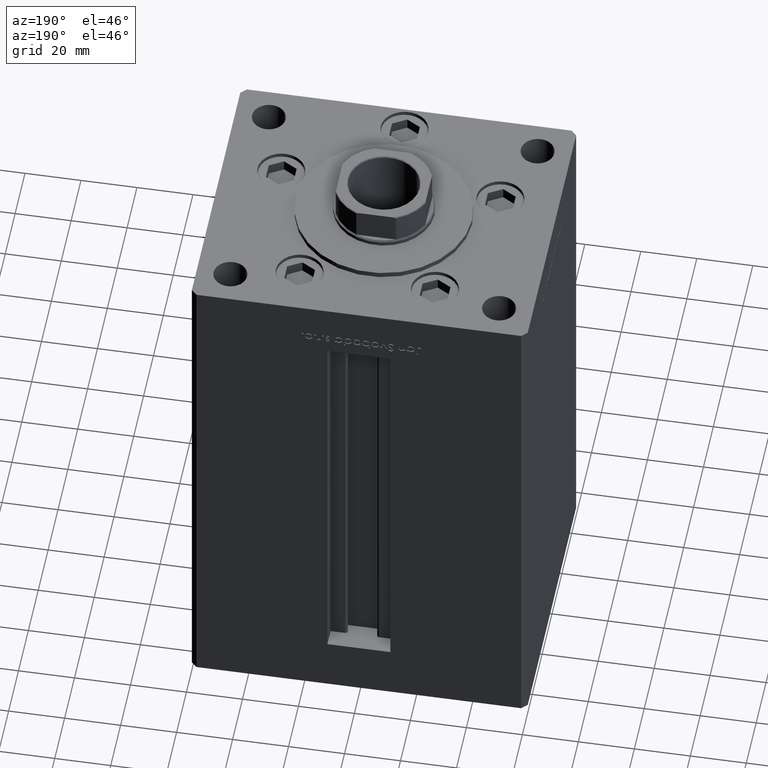
[diagram: clean part render]
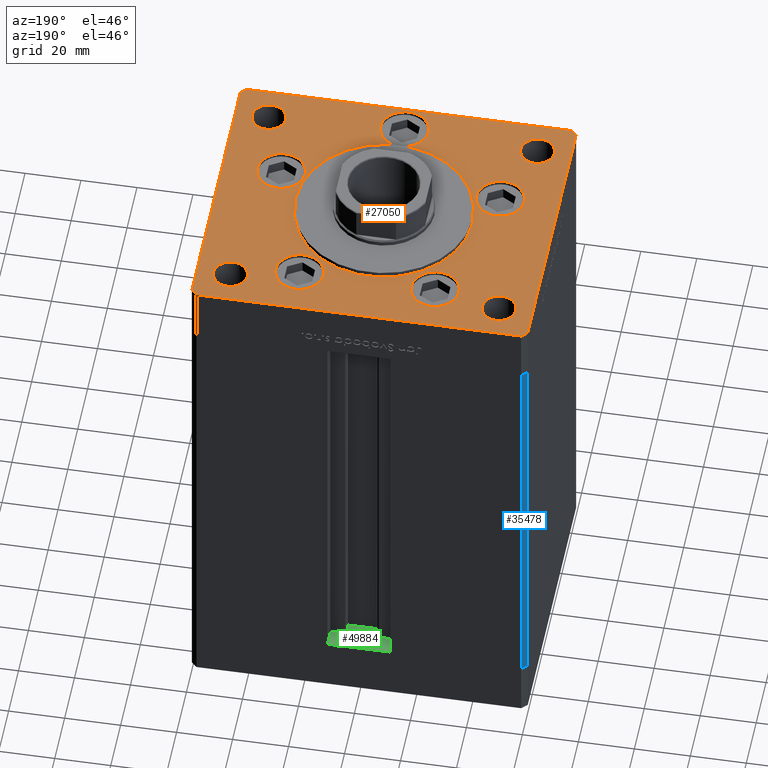
[diagram: same view with three faces highlighted in distinct colors, each labeled with its STEP entity id]
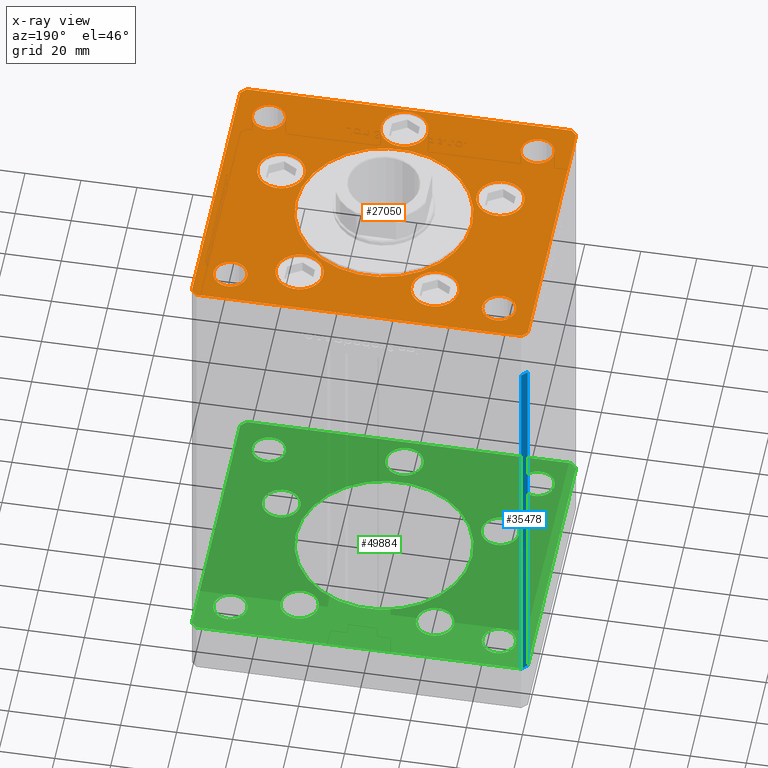
[diagram: x-ray of the same camera — body ghosted, the three highlighted faces saturated]
A machine part, auxiliary view with three faces highlighted in distinct colors.
The next image is the same camera in x-ray (body ghosted, the three faces saturated) — at least one of them is partly hidden behind the body in this view.
Their STEP definitions:

[orange] entity #27050 — the highlighted planar face has unit normal (0, 0, 1).
#274 = ORIENTED_EDGE ( 'NONE', *, *, #41556, .F. ) ;
#489 = EDGE_CURVE ( 'NONE', #48391, #15076, #52145, .T. ) ;
#869 = AXIS2_PLACEMENT_3D ( 'NONE', #36568, #8882, #33129 ) ;
#1043 = ORIENTED_EDGE ( 'NONE', *, *, #39900, .F. ) ;
#1106 = VERTEX_POINT ( 'NONE', #44531 ) ;
#1273 = CIRCLE ( 'NONE', #19786, 6.000000000000005329 ) ;
#1530 = DIRECTION ( 'NONE',  ( 1.000000000000000000, 0.000000000000000000, 0.000000000000000000 ) ) ;
#1558 = CARTESIAN_POINT ( 'NONE',  ( -54.00000000000000711, -39.00000000000001421, 0.000000000000000000 ) ) ;
#1943 = DIRECTION ( 'NONE',  ( 0.7071067811865474617, -0.7071067811865474617, 0.000000000000000000 ) ) ;
#1958 = DIRECTION ( 'NONE',  ( -0.7071067811865536790, -0.7071067811865414665, 0.000000000000000000 ) ) ;
#2222 = VERTEX_POINT ( 'NONE', #33717 ) ;
#2249 = CIRCLE ( 'NONE', #22461, 8.500000000000000000 ) ;
#2277 = VECTOR ( 'NONE', #1958, 1000.000000000000000 ) ;
#2332 = DIRECTION ( 'NONE',  ( 1.000000000000000000, 0.000000000000000000, 0.000000000000000000 ) ) ;
#2356 = EDGE_CURVE ( 'NONE', #19128, #48391, #51859, .T. ) ;
#2426 = CARTESIAN_POINT ( 'NONE',  ( -60.00000000000000000, -49.00000000000004263, 0.000000000000000000 ) ) ;
#2434 = CARTESIAN_POINT ( 'NONE',  ( -41.99999999999999289, 39.00000000000000711, 0.000000000000000000 ) ) ;
#2536 = EDGE_CURVE ( 'NONE', #1106, #23180, #46829, .T. ) ;
#3819 = EDGE_CURVE ( 'NONE', #23180, #33363, #45200, .T. ) ;
#3855 = PLANE ( 'NONE',  #41289 ) ;
#3872 = ORIENTED_EDGE ( 'NONE', *, *, #29405, .F. ) ;
#4156 = EDGE_CURVE ( 'NONE', #42783, #2222, #30617, .T. ) ;
#4356 = CARTESIAN_POINT ( 'NONE',  ( -30.62657522565563539, -13.83333333333332860, 0.000000000000000000 ) ) ;
#4463 = CARTESIAN_POINT ( 'NONE',  ( 58.00000000000000000, 51.00000000000000711, 0.000000000000000000 ) ) ;
#4530 = EDGE_CURVE ( 'NONE', #31236, #38615, #36463, .T. ) ;
#5318 = DIRECTION ( 'NONE',  ( -0.000000000000000000, -0.000000000000000000, -1.000000000000000000 ) ) ;
#6075 = CIRCLE ( 'NONE', #42280, 6.000000000000005329 ) ;
#6276 = DIRECTION ( 'NONE',  ( 1.000000000000000000, 0.000000000000000000, 0.000000000000000000 ) ) ;
#6346 = CIRCLE ( 'NONE', #24015, 6.000000000000005329 ) ;
#6480 = DIRECTION ( 'NONE',  ( -0.000000000000000000, -0.000000000000000000, -1.000000000000000000 ) ) ;
#6703 = DIRECTION ( 'NONE',  ( 0.000000000000000000, 0.000000000000000000, 1.000000000000000000 ) ) ;
#6922 = CARTESIAN_POINT ( 'NONE',  ( 0.000000000000000000, -41.50000000000000000, 0.000000000000000000 ) ) ;
#6978 = ORIENTED_EDGE ( 'NONE', *, *, #15540, .F. ) ;
#7803 = FACE_OUTER_BOUND ( 'NONE', #32513, .T. ) ;
#7813 = DIRECTION ( 'NONE',  ( 1.000000000000000000, 0.000000000000000000, 0.000000000000000000 ) ) ;
#8039 = CARTESIAN_POINT ( 'NONE',  ( 47.62657522565563539, -13.83333333333332860, 0.000000000000000000 ) ) ;
#8655 = CARTESIAN_POINT ( 'NONE',  ( 58.00000000000000000, 51.00000000000000711, 0.000000000000000000 ) ) ;
#8746 = EDGE_LOOP ( 'NONE', ( #3872, #29938 ) ) ;
#8882 = DIRECTION ( 'NONE',  ( 0.000000000000000000, 0.000000000000000000, 1.000000000000000000 ) ) ;
#8983 = CARTESIAN_POINT ( 'NONE',  ( 60.00000000000001421, -48.99999999999992895, 0.000000000000000000 ) ) ;
#9041 = ORIENTED_EDGE ( 'NONE', *, *, #16025, .F. ) ;
#9129 = DIRECTION ( 'NONE',  ( 0.000000000000000000, 0.000000000000000000, 1.000000000000000000 ) ) ;
#9239 = DIRECTION ( 'NONE',  ( 1.000000000000000000, 0.000000000000000000, 0.000000000000000000 ) ) ;
#9530 = DIRECTION ( 'NONE',  ( -1.000000000000000000, 0.000000000000000000, 0.000000000000000000 ) ) ;
#9653 = VERTEX_POINT ( 'NONE', #12580 ) ;
#9690 = FACE_BOUND ( 'NONE', #47284, .T. ) ;
#9851 = CARTESIAN_POINT ( 'NONE',  ( -60.00000000000000000, -49.00000000000004263, 0.000000000000000000 ) ) ;
#10627 = EDGE_LOOP ( 'NONE', ( #11501, #10919 ) ) ;
#10919 = ORIENTED_EDGE ( 'NONE', *, *, #22708, .F. ) ;
#11251 = DIRECTION ( 'NONE',  ( 0.000000000000000000, 0.000000000000000000, 1.000000000000000000 ) ) ;
#11501 = ORIENTED_EDGE ( 'NONE', *, *, #30272, .F. ) ;
#11685 = CARTESIAN_POINT ( 'NONE',  ( 41.99999999999999289, -39.00000000000001421, 0.000000000000000000 ) ) ;
#11756 = FACE_BOUND ( 'NONE', #25699, .T. ) ;
#11913 = CARTESIAN_POINT ( 'NONE',  ( 48.00000000000000000, 39.00000000000000000, 0.000000000000000000 ) ) ;
#12152 = VERTEX_POINT ( 'NONE', #11685 ) ;
#12478 = ORIENTED_EDGE ( 'NONE', *, *, #41008, .F. ) ;
#12564 = ORIENTED_EDGE ( 'NONE', *, *, #48303, .T. ) ;
#12580 = CARTESIAN_POINT ( 'NONE',  ( -47.62657522565563539, -13.83333333333332682, 0.000000000000000000 ) ) ;
#12729 = VERTEX_POINT ( 'NONE', #30099 ) ;
#12808 = DIRECTION ( 'NONE',  ( 1.000000000000000000, 0.000000000000000000, 0.000000000000000000 ) ) ;
#12860 = VECTOR ( 'NONE', #48682, 1000.000000000000000 ) ;
#12928 = DIRECTION ( 'NONE',  ( 0.000000000000000000, 1.000000000000000000, 0.000000000000000000 ) ) ;
#12970 = EDGE_CURVE ( 'NONE', #12152, #47159, #1273, .T. ) ;
#13555 = CARTESIAN_POINT ( 'NONE',  ( -60.00000000000000000, 49.00000000000000000, 0.000000000000000000 ) ) ;
#13820 = VERTEX_POINT ( 'NONE', #30047 ) ;
#13988 = DIRECTION ( 'NONE',  ( 1.000000000000000000, 0.000000000000000000, 0.000000000000000000 ) ) ;
#14462 = VERTEX_POINT ( 'NONE', #22716 ) ;
#14570 = VECTOR ( 'NONE', #43379, 1000.000000000000000 ) ;
#15076 = VERTEX_POINT ( 'NONE', #51949 ) ;
#15267 = EDGE_CURVE ( 'NONE', #2222, #42783, #2249, .T. ) ;
#15311 = VERTEX_POINT ( 'NONE', #23204 ) ;
#15448 = FACE_BOUND ( 'NONE', #41716, .T. ) ;
#15540 = EDGE_CURVE ( 'NONE', #15311, #12729, #47019, .T. ) ;
#15627 = EDGE_LOOP ( 'NONE', ( #17009, #44401 ) ) ;
#15718 = CARTESIAN_POINT ( 'NONE',  ( 32.69288941894912881, 33.71874999999998579, 0.000000000000000000 ) ) ;
#15725 = EDGE_CURVE ( 'NONE', #38615, #31236, #38600, .T. ) ;
#15855 = EDGE_CURVE ( 'NONE', #27662, #21689, #52040, .T. ) ;
#16025 = EDGE_CURVE ( 'NONE', #31084, #48519, #37755, .T. ) ;
#16452 = ORIENTED_EDGE ( 'NONE', *, *, #32193, .T. ) ;
#16935 = CIRCLE ( 'NONE', #46414, 8.500000000000000000 ) ;
#17009 = ORIENTED_EDGE ( 'NONE', *, *, #4530, .F. ) ;
#17982 = ORIENTED_EDGE ( 'NONE', *, *, #39642, .F. ) ;
#18037 = LINE ( 'NONE', #34376, #2277 ) ;
#18147 = DIRECTION ( 'NONE',  ( 0.000000000000000000, 0.000000000000000000, 1.000000000000000000 ) ) ;
#19074 = ORIENTED_EDGE ( 'NONE', *, *, #26580, .F. ) ;
#19128 = VERTEX_POINT ( 'NONE', #22414 ) ;
#19158 = CARTESIAN_POINT ( 'NONE',  ( 0.000000000000000000, 0.000000000000000000, 0.000000000000000000 ) ) ;
#19472 = ORIENTED_EDGE ( 'NONE', *, *, #20085, .F. ) ;
#19645 = AXIS2_PLACEMENT_3D ( 'NONE', #47357, #11251, #7813 ) ;
#19786 = AXIS2_PLACEMENT_3D ( 'NONE', #38137, #45309, #21328 ) ;
#20042 = VECTOR ( 'NONE', #29637, 1000.000000000000000 ) ;
#20085 = EDGE_CURVE ( 'NONE', #48519, #31084, #26923, .T. ) ;
#20130 = CARTESIAN_POINT ( 'NONE',  ( 54.00000000000000711, -39.00000000000001421, 0.000000000000000000 ) ) ;
#20469 = AXIS2_PLACEMENT_3D ( 'NONE', #21361, #49817, #37707 ) ;
#20597 = DIRECTION ( 'NONE',  ( 1.000000000000000000, 0.000000000000000000, 0.000000000000000000 ) ) ;
#21328 = DIRECTION ( 'NONE',  ( -1.000000000000000000, 0.000000000000000000, 0.000000000000000000 ) ) ;
#21361 = CARTESIAN_POINT ( 'NONE',  ( 24.19288941894913592, 33.71874999999998579, 0.000000000000000000 ) ) ;
#21408 = CIRCLE ( 'NONE', #50886, 8.500000000000000000 ) ;
#21657 = CARTESIAN_POINT ( 'NONE',  ( -32.69288941894913592, 33.71874999999998579, 0.000000000000000000 ) ) ;
#21689 = VERTEX_POINT ( 'NONE', #23216 ) ;
#22316 = VERTEX_POINT ( 'NONE', #21657 ) ;
#22414 = CARTESIAN_POINT ( 'NONE',  ( 60.00000000000001421, 49.00000000000002842, 0.000000000000000000 ) ) ;
#22461 = AXIS2_PLACEMENT_3D ( 'NONE', #29811, #37974, #9239 ) ;
#22606 = FACE_BOUND ( 'NONE', #22994, .T. ) ;
#22708 = EDGE_CURVE ( 'NONE', #22316, #23692, #37076, .T. ) ;
#22716 = CARTESIAN_POINT ( 'NONE',  ( -60.00000000000000000, 49.00000000000000000, 0.000000000000000000 ) ) ;
#22867 = AXIS2_PLACEMENT_3D ( 'NONE', #25470, #9129, #34177 ) ;
#22909 = VECTOR ( 'NONE', #12928, 1000.000000000000000 ) ;
#22994 = EDGE_LOOP ( 'NONE', ( #19074, #6978 ) ) ;
#23180 = VERTEX_POINT ( 'NONE', #41601 ) ;
#23204 = CARTESIAN_POINT ( 'NONE',  ( 31.50000000000000000, -3.081256486593065689E-15, 0.000000000000000000 ) ) ;
#23216 = CARTESIAN_POINT ( 'NONE',  ( 8.500000000000000000, -41.50000000000000000, 0.000000000000000000 ) ) ;
#23390 = CARTESIAN_POINT ( 'NONE',  ( 24.19288941894913592, 33.71874999999998579, 0.000000000000000000 ) ) ;
#23430 = AXIS2_PLACEMENT_3D ( 'NONE', #23390, #33378, #12808 ) ;
#23460 = CARTESIAN_POINT ( 'NONE',  ( -48.00000000000000000, 39.00000000000000711, 0.000000000000000000 ) ) ;
#23578 = DIRECTION ( 'NONE',  ( -1.000000000000000000, 0.000000000000000000, 0.000000000000000000 ) ) ;
#23692 = VERTEX_POINT ( 'NONE', #33462 ) ;
#23698 = VERTEX_POINT ( 'NONE', #1558 ) ;
#24015 = AXIS2_PLACEMENT_3D ( 'NONE', #25519, #41334, #1530 ) ;
#24107 = EDGE_LOOP ( 'NONE', ( #33028, #30968 ) ) ;
#24290 = AXIS2_PLACEMENT_3D ( 'NONE', #26309, #18147, #2332 ) ;
#24444 = CIRCLE ( 'NONE', #31173, 31.50000000000000000 ) ;
#24515 = CIRCLE ( 'NONE', #22867, 8.500000000000000000 ) ;
#24799 = VECTOR ( 'NONE', #1943, 1000.000000000000114 ) ;
#25003 = DIRECTION ( 'NONE',  ( -1.000000000000000000, -2.392722035830078972E-16, 0.000000000000000000 ) ) ;
#25470 = CARTESIAN_POINT ( 'NONE',  ( 0.000000000000000000, -41.50000000000000000, 0.000000000000000000 ) ) ;
#25519 = CARTESIAN_POINT ( 'NONE',  ( -48.00000000000000000, -39.00000000000001421, 0.000000000000000000 ) ) ;
#25699 = EDGE_LOOP ( 'NONE', ( #16452, #35122 ) ) ;
#25746 = AXIS2_PLACEMENT_3D ( 'NONE', #23460, #39539, #51905 ) ;
#26160 = EDGE_LOOP ( 'NONE', ( #274, #17982 ) ) ;
#26309 = CARTESIAN_POINT ( 'NONE',  ( 0.000000000000000000, -6.938893903907228378E-15, 0.000000000000000000 ) ) ;
#26580 = EDGE_CURVE ( 'NONE', #12729, #15311, #24444, .T. ) ;
#26923 = CIRCLE ( 'NONE', #37000, 6.000000000000005329 ) ;
#27050 = ADVANCED_FACE ( 'NONE', ( #22606, #38680, #30776, #34986, #29729, #9690, #52059, #15448, #51814, #7803, #11756 ), #3855, .T. ) ;
#27068 = AXIS2_PLACEMENT_3D ( 'NONE', #37214, #5318, #9530 ) ;
#27182 = DIRECTION ( 'NONE',  ( 1.000000000000000000, 0.000000000000000000, 0.000000000000000000 ) ) ;
#27427 = CARTESIAN_POINT ( 'NONE',  ( -24.19288941894913592, 33.71874999999998579, 0.000000000000000000 ) ) ;
#27459 = ORIENTED_EDGE ( 'NONE', *, *, #3819, .T. ) ;
#27535 = VERTEX_POINT ( 'NONE', #2434 ) ;
#27662 = VERTEX_POINT ( 'NONE', #44040 ) ;
#27839 = DIRECTION ( 'NONE',  ( 1.000000000000000000, 0.000000000000000000, 0.000000000000000000 ) ) ;
#29405 = EDGE_CURVE ( 'NONE', #21689, #27662, #24515, .T. ) ;
#29637 = DIRECTION ( 'NONE',  ( 0.000000000000000000, -1.000000000000000000, 0.000000000000000000 ) ) ;
#29729 = FACE_BOUND ( 'NONE', #8746, .T. ) ;
#29811 = CARTESIAN_POINT ( 'NONE',  ( 39.12657522565563539, -13.83333333333332860, 0.000000000000000000 ) ) ;
#29938 = ORIENTED_EDGE ( 'NONE', *, *, #15855, .F. ) ;
#30047 = CARTESIAN_POINT ( 'NONE',  ( -41.99999999999999289, -39.00000000000001421, 0.000000000000000000 ) ) ;
#30099 = CARTESIAN_POINT ( 'NONE',  ( -31.50000000000000000, -6.938893903907228378E-15, 0.000000000000000000 ) ) ;
#30272 = EDGE_CURVE ( 'NONE', #23692, #22316, #16935, .T. ) ;
#30617 = CIRCLE ( 'NONE', #19645, 8.500000000000000000 ) ;
#30776 = FACE_BOUND ( 'NONE', #15627, .T. ) ;
#30845 = CARTESIAN_POINT ( 'NONE',  ( -39.12657522565563539, -13.83333333333332860, 0.000000000000000000 ) ) ;
#30861 = EDGE_CURVE ( 'NONE', #42957, #27535, #43061, .T. ) ;
#30968 = ORIENTED_EDGE ( 'NONE', *, *, #15267, .F. ) ;
#31084 = VERTEX_POINT ( 'NONE', #38431 ) ;
#31169 = DIRECTION ( 'NONE',  ( 0.000000000000000000, 0.000000000000000000, 1.000000000000000000 ) ) ;
#31173 = AXIS2_PLACEMENT_3D ( 'NONE', #34644, #6703, #43839 ) ;
#31236 = VERTEX_POINT ( 'NONE', #15718 ) ;
#31704 = CARTESIAN_POINT ( 'NONE',  ( 15.69288941894913769, 33.71874999999998579, 0.000000000000000000 ) ) ;
#31861 = EDGE_CURVE ( 'NONE', #33363, #19128, #49033, .T. ) ;
#32193 = EDGE_CURVE ( 'NONE', #47159, #12152, #6075, .T. ) ;
#32513 = EDGE_LOOP ( 'NONE', ( #50659, #34074, #27459, #46350, #43709, #38744, #49226, #46722 ) ) ;
#33028 = ORIENTED_EDGE ( 'NONE', *, *, #4156, .F. ) ;
#33129 = DIRECTION ( 'NONE',  ( 1.000000000000000000, 0.000000000000000000, 0.000000000000000000 ) ) ;
#33235 = AXIS2_PLACEMENT_3D ( 'NONE', #33535, #36715, #45391 ) ;
#33363 = VERTEX_POINT ( 'NONE', #46814 ) ;
#33378 = DIRECTION ( 'NONE',  ( 0.000000000000000000, 0.000000000000000000, 1.000000000000000000 ) ) ;
#33462 = CARTESIAN_POINT ( 'NONE',  ( -15.69288941894913414, 33.71874999999998579, 0.000000000000000000 ) ) ;
#33535 = CARTESIAN_POINT ( 'NONE',  ( -48.00000000000000000, -39.00000000000001421, 0.000000000000000000 ) ) ;
#33681 = VERTEX_POINT ( 'NONE', #4356 ) ;
#33717 = CARTESIAN_POINT ( 'NONE',  ( 30.62657522565563184, -13.83333333333332682, 0.000000000000000000 ) ) ;
#34074 = ORIENTED_EDGE ( 'NONE', *, *, #2536, .T. ) ;
#34177 = DIRECTION ( 'NONE',  ( 1.000000000000000000, 0.000000000000000000, 0.000000000000000000 ) ) ;
#34376 = CARTESIAN_POINT ( 'NONE',  ( -57.99999999999998579, 50.99999999999997868, 0.000000000000000000 ) ) ;
#34644 = CARTESIAN_POINT ( 'NONE',  ( 0.000000000000000000, -6.938893903907228378E-15, 0.000000000000000000 ) ) ;
#34943 = AXIS2_PLACEMENT_3D ( 'NONE', #30845, #42966, #13988 ) ;
#34986 = FACE_BOUND ( 'NONE', #24107, .T. ) ;
#35122 = ORIENTED_EDGE ( 'NONE', *, *, #12970, .T. ) ;
#35486 = DIRECTION ( 'NONE',  ( -0.000000000000000000, 0.000000000000000000, 1.000000000000000000 ) ) ;
#36112 = DIRECTION ( 'NONE',  ( 1.000000000000000000, 0.000000000000000000, 0.000000000000000000 ) ) ;
#36463 = CIRCLE ( 'NONE', #20469, 8.499999999999992895 ) ;
#36493 = CARTESIAN_POINT ( 'NONE',  ( 54.00000000000000711, 39.00000000000000000, 0.000000000000000000 ) ) ;
#36568 = CARTESIAN_POINT ( 'NONE',  ( -24.19288941894913592, 33.71874999999998579, 0.000000000000000000 ) ) ;
#36715 = DIRECTION ( 'NONE',  ( 0.000000000000000000, 0.000000000000000000, 1.000000000000000000 ) ) ;
#37000 = AXIS2_PLACEMENT_3D ( 'NONE', #42908, #42387, #6276 ) ;
#37076 = CIRCLE ( 'NONE', #869, 8.500000000000000000 ) ;
#37214 = CARTESIAN_POINT ( 'NONE',  ( -48.00000000000000000, 39.00000000000000711, 0.000000000000000000 ) ) ;
#37266 = LINE ( 'NONE', #9851, #24799 ) ;
#37292 = CARTESIAN_POINT ( 'NONE',  ( 58.00000000000001421, -50.99999999999992184, 0.000000000000000000 ) ) ;
#37707 = DIRECTION ( 'NONE',  ( 1.000000000000000000, 0.000000000000000000, 0.000000000000000000 ) ) ;
#37755 = CIRCLE ( 'NONE', #44496, 6.000000000000005329 ) ;
#37974 = DIRECTION ( 'NONE',  ( 0.000000000000000000, 0.000000000000000000, 1.000000000000000000 ) ) ;
#38137 = CARTESIAN_POINT ( 'NONE',  ( 48.00000000000000000, -39.00000000000001421, 0.000000000000000000 ) ) ;
#38431 = CARTESIAN_POINT ( 'NONE',  ( 41.99999999999999289, 39.00000000000000000, 0.000000000000000000 ) ) ;
#38600 = CIRCLE ( 'NONE', #23430, 8.499999999999992895 ) ;
#38615 = VERTEX_POINT ( 'NONE', #31704 ) ;
#38680 = FACE_BOUND ( 'NONE', #10627, .T. ) ;
#38744 = ORIENTED_EDGE ( 'NONE', *, *, #489, .T. ) ;
#39539 = DIRECTION ( 'NONE',  ( -0.000000000000000000, -0.000000000000000000, -1.000000000000000000 ) ) ;
#39642 = EDGE_CURVE ( 'NONE', #23698, #13820, #44149, .T. ) ;
#39834 = VERTEX_POINT ( 'NONE', #2426 ) ;
#39900 = EDGE_CURVE ( 'NONE', #33681, #9653, #21408, .T. ) ;
#40286 = AXIS2_PLACEMENT_3D ( 'NONE', #6922, #31169, #50941 ) ;
#40344 = DIRECTION ( 'NONE',  ( 0.000000000000000000, 0.000000000000000000, 1.000000000000000000 ) ) ;
#40373 = DIRECTION ( 'NONE',  ( 0.000000000000000000, 0.000000000000000000, 1.000000000000000000 ) ) ;
#41008 = EDGE_CURVE ( 'NONE', #9653, #33681, #44182, .T. ) ;
#41289 = AXIS2_PLACEMENT_3D ( 'NONE', #19158, #35486, #27839 ) ;
#41334 = DIRECTION ( 'NONE',  ( 0.000000000000000000, 0.000000000000000000, 1.000000000000000000 ) ) ;
#41556 = EDGE_CURVE ( 'NONE', #13820, #23698, #6346, .T. ) ;
#41601 = CARTESIAN_POINT ( 'NONE',  ( 58.00000000000001421, -50.99999999999992184, 0.000000000000000000 ) ) ;
#41716 = EDGE_LOOP ( 'NONE', ( #19472, #9041 ) ) ;
#42280 = AXIS2_PLACEMENT_3D ( 'NONE', #46799, #6480, #23578 ) ;
#42387 = DIRECTION ( 'NONE',  ( 0.000000000000000000, 0.000000000000000000, 1.000000000000000000 ) ) ;
#42783 = VERTEX_POINT ( 'NONE', #8039 ) ;
#42908 = CARTESIAN_POINT ( 'NONE',  ( 48.00000000000000000, 39.00000000000000000, 0.000000000000000000 ) ) ;
#42957 = VERTEX_POINT ( 'NONE', #45958 ) ;
#42966 = DIRECTION ( 'NONE',  ( 0.000000000000000000, 0.000000000000000000, 1.000000000000000000 ) ) ;
#42990 = EDGE_CURVE ( 'NONE', #39834, #1106, #37266, .T. ) ;
#43061 = CIRCLE ( 'NONE', #27068, 6.000000000000005329 ) ;
#43379 = DIRECTION ( 'NONE',  ( 1.000000000000000000, 9.570888143320313916E-16, 0.000000000000000000 ) ) ;
#43709 = ORIENTED_EDGE ( 'NONE', *, *, #2356, .T. ) ;
#43839 = DIRECTION ( 'NONE',  ( 1.000000000000000000, 0.000000000000000000, 0.000000000000000000 ) ) ;
#43853 = EDGE_LOOP ( 'NONE', ( #12564, #46000 ) ) ;
#44014 = DIRECTION ( 'NONE',  ( 0.000000000000000000, 0.000000000000000000, 1.000000000000000000 ) ) ;
#44040 = CARTESIAN_POINT ( 'NONE',  ( -8.500000000000000000, -41.50000000000000000, 0.000000000000000000 ) ) ;
#44149 = CIRCLE ( 'NONE', #33235, 6.000000000000005329 ) ;
#44182 = CIRCLE ( 'NONE', #34943, 8.500000000000000000 ) ;
#44401 = ORIENTED_EDGE ( 'NONE', *, *, #15725, .F. ) ;
#44496 = AXIS2_PLACEMENT_3D ( 'NONE', #11913, #40373, #20597 ) ;
#44531 = CARTESIAN_POINT ( 'NONE',  ( -58.00000000000000711, -51.00000000000002842, 0.000000000000000000 ) ) ;
#44776 = VECTOR ( 'NONE', #25003, 1000.000000000000000 ) ;
#45200 = LINE ( 'NONE', #37292, #47413 ) ;
#45309 = DIRECTION ( 'NONE',  ( -0.000000000000000000, -0.000000000000000000, -1.000000000000000000 ) ) ;
#45391 = DIRECTION ( 'NONE',  ( 1.000000000000000000, 0.000000000000000000, 0.000000000000000000 ) ) ;
#45958 = CARTESIAN_POINT ( 'NONE',  ( -54.00000000000000711, 39.00000000000000711, 0.000000000000000000 ) ) ;
#46000 = ORIENTED_EDGE ( 'NONE', *, *, #30861, .T. ) ;
#46350 = ORIENTED_EDGE ( 'NONE', *, *, #31861, .T. ) ;
#46414 = AXIS2_PLACEMENT_3D ( 'NONE', #27427, #44014, #36112 ) ;
#46722 = ORIENTED_EDGE ( 'NONE', *, *, #51972, .T. ) ;
#46799 = CARTESIAN_POINT ( 'NONE',  ( 48.00000000000000000, -39.00000000000001421, 0.000000000000000000 ) ) ;
#46814 = CARTESIAN_POINT ( 'NONE',  ( 60.00000000000001421, -48.99999999999992895, 0.000000000000000000 ) ) ;
#46829 = LINE ( 'NONE', #51279, #14570 ) ;
#47019 = CIRCLE ( 'NONE', #24290, 31.50000000000000000 ) ;
#47159 = VERTEX_POINT ( 'NONE', #20130 ) ;
#47213 = CARTESIAN_POINT ( 'NONE',  ( -39.12657522565563539, -13.83333333333332860, 0.000000000000000000 ) ) ;
#47284 = EDGE_LOOP ( 'NONE', ( #1043, #12478 ) ) ;
#47357 = CARTESIAN_POINT ( 'NONE',  ( 39.12657522565563539, -13.83333333333332860, 0.000000000000000000 ) ) ;
#47413 = VECTOR ( 'NONE', #49144, 1000.000000000000114 ) ;
#48303 = EDGE_CURVE ( 'NONE', #27535, #42957, #48460, .T. ) ;
#48391 = VERTEX_POINT ( 'NONE', #4463 ) ;
#48460 = CIRCLE ( 'NONE', #25746, 6.000000000000005329 ) ;
#48519 = VERTEX_POINT ( 'NONE', #36493 ) ;
#48682 = DIRECTION ( 'NONE',  ( -0.7071067811865536790, 0.7071067811865414665, 0.000000000000000000 ) ) ;
#49033 = LINE ( 'NONE', #8983, #22909 ) ;
#49144 = DIRECTION ( 'NONE',  ( 0.7071067811865474617, 0.7071067811865474617, 0.000000000000000000 ) ) ;
#49226 = ORIENTED_EDGE ( 'NONE', *, *, #50646, .T. ) ;
#49643 = LINE ( 'NONE', #13555, #20042 ) ;
#49817 = DIRECTION ( 'NONE',  ( 0.000000000000000000, 0.000000000000000000, 1.000000000000000000 ) ) ;
#50646 = EDGE_CURVE ( 'NONE', #15076, #14462, #18037, .T. ) ;
#50659 = ORIENTED_EDGE ( 'NONE', *, *, #42990, .T. ) ;
#50886 = AXIS2_PLACEMENT_3D ( 'NONE', #47213, #40344, #27182 ) ;
#50941 = DIRECTION ( 'NONE',  ( 1.000000000000000000, 0.000000000000000000, 0.000000000000000000 ) ) ;
#51279 = CARTESIAN_POINT ( 'NONE',  ( -58.00000000000000711, -51.00000000000002842, 0.000000000000000000 ) ) ;
#51814 = FACE_BOUND ( 'NONE', #26160, .T. ) ;
#51859 = LINE ( 'NONE', #52106, #12860 ) ;
#51905 = DIRECTION ( 'NONE',  ( -1.000000000000000000, 0.000000000000000000, 0.000000000000000000 ) ) ;
#51949 = CARTESIAN_POINT ( 'NONE',  ( -57.99999999999998579, 50.99999999999997868, 0.000000000000000000 ) ) ;
#51972 = EDGE_CURVE ( 'NONE', #14462, #39834, #49643, .T. ) ;
#52040 = CIRCLE ( 'NONE', #40286, 8.500000000000000000 ) ;
#52059 = FACE_BOUND ( 'NONE', #43853, .T. ) ;
#52106 = CARTESIAN_POINT ( 'NONE',  ( 60.00000000000001421, 49.00000000000002842, 0.000000000000000000 ) ) ;
#52145 = LINE ( 'NONE', #8655, #44776 ) ;

[blue] entity #35478 — the highlighted planar face has unit normal (0.7071, -0.7071, 0).
#3084 = PLANE ( 'NONE',  #17961 ) ;
#3142 = ORIENTED_EDGE ( 'NONE', *, *, #28265, .F. ) ;
#3329 = VERTEX_POINT ( 'NONE', #30829 ) ;
#4352 = LINE ( 'NONE', #41235, #4629 ) ;
#4629 = VECTOR ( 'NONE', #20941, 1000.000000000000114 ) ;
#9024 = ORIENTED_EDGE ( 'NONE', *, *, #13171, .T. ) ;
#9685 = CARTESIAN_POINT ( 'NONE',  ( -57.99999999999999289, 51.00000000000000711, 148.5000000000000000 ) ) ;
#12054 = VECTOR ( 'NONE', #19530, 1000.000000000000000 ) ;
#12485 = VERTEX_POINT ( 'NONE', #46486 ) ;
#12733 = LINE ( 'NONE', #44377, #46375 ) ;
#13171 = EDGE_CURVE ( 'NONE', #3329, #12485, #4352, .T. ) ;
#13643 = CARTESIAN_POINT ( 'NONE',  ( -57.99999999999999289, 51.00000000000000711, 148.5000000000000000 ) ) ;
#13862 = CARTESIAN_POINT ( 'NONE',  ( -60.00000000000001421, 49.00000000000000000, 148.5000000000000000 ) ) ;
#14491 = ORIENTED_EDGE ( 'NONE', *, *, #35035, .F. ) ;
#17825 = EDGE_LOOP ( 'NONE', ( #9024, #14491, #3142, #46613 ) ) ;
#17852 = DIRECTION ( 'NONE',  ( -0.000000000000000000, -0.000000000000000000, -1.000000000000000000 ) ) ;
#17961 = AXIS2_PLACEMENT_3D ( 'NONE', #19932, #19162, #35755 ) ;
#17986 = VERTEX_POINT ( 'NONE', #13643 ) ;
#19162 = DIRECTION ( 'NONE',  ( 0.7071067811865451302, -0.7071067811865499042, 0.000000000000000000 ) ) ;
#19530 = DIRECTION ( 'NONE',  ( -0.000000000000000000, -0.000000000000000000, -1.000000000000000000 ) ) ;
#19669 = FACE_OUTER_BOUND ( 'NONE', #17825, .T. ) ;
#19932 = CARTESIAN_POINT ( 'NONE',  ( -57.99999999999999289, 51.00000000000000711, 148.5000000000000000 ) ) ;
#20941 = DIRECTION ( 'NONE',  ( -0.7071067811865500152, -0.7071067811865451302, 0.000000000000000000 ) ) ;
#23491 = CARTESIAN_POINT ( 'NONE',  ( -60.00000000000001421, 49.00000000000000000, 148.5000000000000000 ) ) ;
#28265 = EDGE_CURVE ( 'NONE', #17986, #36413, #12733, .T. ) ;
#30829 = CARTESIAN_POINT ( 'NONE',  ( -57.99999999999999289, 51.00000000000000711, 0.000000000000000000 ) ) ;
#31395 = VECTOR ( 'NONE', #17852, 1000.000000000000000 ) ;
#34372 = EDGE_CURVE ( 'NONE', #17986, #3329, #46576, .T. ) ;
#35035 = EDGE_CURVE ( 'NONE', #36413, #12485, #46178, .T. ) ;
#35478 = ADVANCED_FACE ( 'NONE', ( #19669 ), #3084, .F. ) ;
#35755 = DIRECTION ( 'NONE',  ( 0.7071067811865499042, 0.7071067811865451302, 0.000000000000000000 ) ) ;
#36413 = VERTEX_POINT ( 'NONE', #13862 ) ;
#37243 = DIRECTION ( 'NONE',  ( -0.7071067811865500152, -0.7071067811865451302, 0.000000000000000000 ) ) ;
#41235 = CARTESIAN_POINT ( 'NONE',  ( -57.99999999999999289, 51.00000000000000711, 0.000000000000000000 ) ) ;
#44377 = CARTESIAN_POINT ( 'NONE',  ( -57.99999999999999289, 51.00000000000000711, 148.5000000000000000 ) ) ;
#46178 = LINE ( 'NONE', #23491, #12054 ) ;
#46375 = VECTOR ( 'NONE', #37243, 1000.000000000000114 ) ;
#46486 = CARTESIAN_POINT ( 'NONE',  ( -60.00000000000001421, 49.00000000000000000, 0.000000000000000000 ) ) ;
#46576 = LINE ( 'NONE', #9685, #31395 ) ;
#46613 = ORIENTED_EDGE ( 'NONE', *, *, #34372, .T. ) ;

[green] entity #49884 — the highlighted planar face has unit normal (0, 0, -1).
#18 = ORIENTED_EDGE ( 'NONE', *, *, #8610, .T. ) ;
#28 = ORIENTED_EDGE ( 'NONE', *, *, #25037, .F. ) ;
#255 = VECTOR ( 'NONE', #5793, 1000.000000000000114 ) ;
#353 = EDGE_LOOP ( 'NONE', ( #9885, #26817, #30519, #8986, #17071, #36330, #49816, #36086 ) ) ;
#487 = CIRCLE ( 'NONE', #19831, 31.50000000000000000 ) ;
#612 = DIRECTION ( 'NONE',  ( 0.000000000000000000, -0.000000000000000000, -1.000000000000000000 ) ) ;
#792 = CIRCLE ( 'NONE', #41213, 6.000000000000005329 ) ;
#1482 = LINE ( 'NONE', #9654, #6038 ) ;
#1649 = DIRECTION ( 'NONE',  ( 0.000000000000000000, 0.000000000000000000, 1.000000000000000000 ) ) ;
#1913 = VERTEX_POINT ( 'NONE', #44020 ) ;
#1948 = FACE_BOUND ( 'NONE', #2263, .T. ) ;
#1979 = EDGE_LOOP ( 'NONE', ( #36070, #18 ) ) ;
#2028 = DIRECTION ( 'NONE',  ( 0.000000000000000000, -0.000000000000000000, -1.000000000000000000 ) ) ;
#2110 = CARTESIAN_POINT ( 'NONE',  ( 41.99999999999999289, 38.99999999999999289, -20.00000000000000000 ) ) ;
#2263 = EDGE_LOOP ( 'NONE', ( #25187, #5280 ) ) ;
#2774 = DIRECTION ( 'NONE',  ( 1.000000000000000000, 0.000000000000000000, 0.000000000000000000 ) ) ;
#3184 = EDGE_CURVE ( 'NONE', #8351, #26879, #21339, .T. ) ;
#3192 = VECTOR ( 'NONE', #32085, 1000.000000000000000 ) ;
#3467 = VECTOR ( 'NONE', #17518, 1000.000000000000114 ) ;
#3482 = DIRECTION ( 'NONE',  ( -1.000000000000000000, 0.000000000000000000, 0.000000000000000000 ) ) ;
#3498 = CARTESIAN_POINT ( 'NONE',  ( 32.37657522565562829, -13.83333333333332860, -20.00000000000000000 ) ) ;
#3576 = EDGE_CURVE ( 'NONE', #35497, #43166, #17579, .T. ) ;
#4132 = EDGE_LOOP ( 'NONE', ( #45566, #11397 ) ) ;
#4157 = CIRCLE ( 'NONE', #35321, 6.000000000000005329 ) ;
#4296 = DIRECTION ( 'NONE',  ( 1.000000000000000000, 0.000000000000000000, 0.000000000000000000 ) ) ;
#4317 = CARTESIAN_POINT ( 'NONE',  ( 0.000000000000000000, 0.000000000000000000, -20.00000000000000000 ) ) ;
#4350 = CARTESIAN_POINT ( 'NONE',  ( 48.00000000000000000, -38.99999999999999289, -20.00000000000000000 ) ) ;
#4777 = AXIS2_PLACEMENT_3D ( 'NONE', #26714, #5897, #21985 ) ;
#4880 = LINE ( 'NONE', #40736, #3467 ) ;
#5280 = ORIENTED_EDGE ( 'NONE', *, *, #6633, .F. ) ;
#5793 = DIRECTION ( 'NONE',  ( -0.7071067811865451302, -0.7071067811865500152, 0.000000000000000000 ) ) ;
#5897 = DIRECTION ( 'NONE',  ( -0.000000000000000000, 0.000000000000000000, 1.000000000000000000 ) ) ;
#6038 = VECTOR ( 'NONE', #15417, 1000.000000000000000 ) ;
#6138 = CARTESIAN_POINT ( 'NONE',  ( 60.00000000000001421, -48.99999999999999289, -20.00000000000000000 ) ) ;
#6432 = FACE_BOUND ( 'NONE', #39581, .T. ) ;
#6633 = EDGE_CURVE ( 'NONE', #1913, #37501, #28982, .T. ) ;
#6707 = CARTESIAN_POINT ( 'NONE',  ( 30.94288941894911105, 33.71875000000000711, -20.00000000000000000 ) ) ;
#6930 = CARTESIAN_POINT ( 'NONE',  ( -48.00000000000000000, -39.00000000000000000, -20.00000000000000000 ) ) ;
#7092 = AXIS2_PLACEMENT_3D ( 'NONE', #24205, #40276, #20239 ) ;
#7139 = DIRECTION ( 'NONE',  ( 1.000000000000000000, 0.000000000000000000, 0.000000000000000000 ) ) ;
#7443 = DIRECTION ( 'NONE',  ( 0.000000000000000000, 0.000000000000000000, 1.000000000000000000 ) ) ;
#7467 = CARTESIAN_POINT ( 'NONE',  ( 45.87657522565562829, -13.83333333333332860, -20.00000000000000000 ) ) ;
#7786 = DIRECTION ( 'NONE',  ( -1.000000000000000000, 0.000000000000000000, 0.000000000000000000 ) ) ;
#7974 = CIRCLE ( 'NONE', #45830, 6.749999999999999112 ) ;
#8095 = ORIENTED_EDGE ( 'NONE', *, *, #10762, .F. ) ;
#8100 = AXIS2_PLACEMENT_3D ( 'NONE', #18283, #26183, #30418 ) ;
#8320 = VERTEX_POINT ( 'NONE', #23849 ) ;
#8351 = VERTEX_POINT ( 'NONE', #19626 ) ;
#8610 = EDGE_CURVE ( 'NONE', #27904, #22991, #43345, .T. ) ;
#8813 = DIRECTION ( 'NONE',  ( -0.000000000000000000, -0.000000000000000000, -1.000000000000000000 ) ) ;
#8986 = ORIENTED_EDGE ( 'NONE', *, *, #29439, .F. ) ;
#9345 = CARTESIAN_POINT ( 'NONE',  ( 54.00000000000000711, -38.99999999999999289, -20.00000000000000000 ) ) ;
#9654 = CARTESIAN_POINT ( 'NONE',  ( 57.99999999999993605, 51.00000000000000711, -20.00000000000000000 ) ) ;
#9688 = DIRECTION ( 'NONE',  ( -1.000000000000000000, 0.000000000000000000, 0.000000000000000000 ) ) ;
#9817 = VERTEX_POINT ( 'NONE', #3498 ) ;
#9885 = ORIENTED_EDGE ( 'NONE', *, *, #25079, .F. ) ;
#10241 = CARTESIAN_POINT ( 'NONE',  ( 54.00000000000000711, 38.99999999999999289, -20.00000000000000000 ) ) ;
#10378 = FACE_BOUND ( 'NONE', #43926, .T. ) ;
#10428 = CARTESIAN_POINT ( 'NONE',  ( 5.082284216461515748E-15, -41.50000000000000000, -20.00000000000000000 ) ) ;
#10522 = LINE ( 'NONE', #17631, #23608 ) ;
#10594 = DIRECTION ( 'NONE',  ( 0.000000000000000000, -0.000000000000000000, -1.000000000000000000 ) ) ;
#10596 = VERTEX_POINT ( 'NONE', #21267 ) ;
#10626 = CARTESIAN_POINT ( 'NONE',  ( -6.749999999999993783, -41.50000000000000000, -20.00000000000000000 ) ) ;
#10639 = FACE_OUTER_BOUND ( 'NONE', #353, .T. ) ;
#10762 = EDGE_CURVE ( 'NONE', #43997, #25176, #12146, .T. ) ;
#11182 = EDGE_LOOP ( 'NONE', ( #15223, #27971 ) ) ;
#11397 = ORIENTED_EDGE ( 'NONE', *, *, #47207, .F. ) ;
#11536 = LINE ( 'NONE', #15484, #3192 ) ;
#11655 = DIRECTION ( 'NONE',  ( -0.000000000000000000, -0.000000000000000000, -1.000000000000000000 ) ) ;
#11968 = ORIENTED_EDGE ( 'NONE', *, *, #41890, .F. ) ;
#12062 = EDGE_CURVE ( 'NONE', #35177, #8320, #7974, .T. ) ;
#12146 = CIRCLE ( 'NONE', #51798, 6.749999999999999112 ) ;
#12238 = VECTOR ( 'NONE', #18602, 1000.000000000000114 ) ;
#12771 = EDGE_CURVE ( 'NONE', #18926, #14125, #23107, .T. ) ;
#12905 = CIRCLE ( 'NONE', #27209, 6.000000000000005329 ) ;
#13314 = VERTEX_POINT ( 'NONE', #7467 ) ;
#13914 = CARTESIAN_POINT ( 'NONE',  ( -48.00000000000000000, -39.00000000000000000, -20.00000000000000000 ) ) ;
#13961 = DIRECTION ( 'NONE',  ( 1.000000000000000000, 1.196361017915039486E-16, 0.000000000000000000 ) ) ;
#14125 = VERTEX_POINT ( 'NONE', #41562 ) ;
#14143 = CARTESIAN_POINT ( 'NONE',  ( 31.50000000000000000, 0.000000000000000000, -20.00000000000000000 ) ) ;
#14434 = EDGE_CURVE ( 'NONE', #45001, #47931, #38458, .T. ) ;
#14589 = FACE_BOUND ( 'NONE', #11182, .T. ) ;
#14716 = DIRECTION ( 'NONE',  ( 0.000000000000000000, 0.000000000000000000, 1.000000000000000000 ) ) ;
#14790 = CARTESIAN_POINT ( 'NONE',  ( -39.12657522565562829, -13.83333333333333925, -20.00000000000000000 ) ) ;
#14905 = LINE ( 'NONE', #51014, #12238 ) ;
#15007 = VERTEX_POINT ( 'NONE', #6138 ) ;
#15223 = ORIENTED_EDGE ( 'NONE', *, *, #35471, .F. ) ;
#15401 = DIRECTION ( 'NONE',  ( 0.000000000000000000, -0.000000000000000000, -1.000000000000000000 ) ) ;
#15417 = DIRECTION ( 'NONE',  ( -1.000000000000000000, -2.392722035830079958E-16, 0.000000000000000000 ) ) ;
#15484 = CARTESIAN_POINT ( 'NONE',  ( -60.00000000000000000, 48.99999999999995737, -20.00000000000000000 ) ) ;
#16456 = AXIS2_PLACEMENT_3D ( 'NONE', #10428, #42848, #39152 ) ;
#16526 = AXIS2_PLACEMENT_3D ( 'NONE', #32412, #17107, #16846 ) ;
#16846 = DIRECTION ( 'NONE',  ( 1.000000000000000000, 0.000000000000000000, 0.000000000000000000 ) ) ;
#17071 = ORIENTED_EDGE ( 'NONE', *, *, #3576, .F. ) ;
#17107 = DIRECTION ( 'NONE',  ( 0.000000000000000000, -0.000000000000000000, -1.000000000000000000 ) ) ;
#17518 = DIRECTION ( 'NONE',  ( 0.7071067811865474617, -0.7071067811865474617, 0.000000000000000000 ) ) ;
#17579 = LINE ( 'NONE', #33663, #44845 ) ;
#17631 = CARTESIAN_POINT ( 'NONE',  ( -57.99999999999997868, -51.00000000000001421, -20.00000000000000000 ) ) ;
#17990 = EDGE_CURVE ( 'NONE', #37501, #1913, #18429, .T. ) ;
#17992 = DIRECTION ( 'NONE',  ( 1.000000000000000000, 0.000000000000000000, 0.000000000000000000 ) ) ;
#18066 = AXIS2_PLACEMENT_3D ( 'NONE', #14790, #31131, #7139 ) ;
#18283 = CARTESIAN_POINT ( 'NONE',  ( 0.000000000000000000, 0.000000000000000000, -20.00000000000000000 ) ) ;
#18429 = CIRCLE ( 'NONE', #47870, 6.000000000000005329 ) ;
#18602 = DIRECTION ( 'NONE',  ( 0.7071067811865474617, 0.7071067811865474617, 0.000000000000000000 ) ) ;
#18730 = EDGE_CURVE ( 'NONE', #22991, #27904, #4157, .T. ) ;
#18926 = VERTEX_POINT ( 'NONE', #36396 ) ;
#19413 = CARTESIAN_POINT ( 'NONE',  ( 59.99999999999994316, 49.00000000000000000, -20.00000000000000000 ) ) ;
#19438 = EDGE_CURVE ( 'NONE', #42382, #40165, #792, .T. ) ;
#19469 = CIRCLE ( 'NONE', #26206, 6.749999999999999112 ) ;
#19504 = CIRCLE ( 'NONE', #51547, 6.749999999999999112 ) ;
#19626 = CARTESIAN_POINT ( 'NONE',  ( -57.99999999999999289, 50.99999999999997868, -20.00000000000000000 ) ) ;
#19831 = AXIS2_PLACEMENT_3D ( 'NONE', #4317, #612, #44637 ) ;
#20239 = DIRECTION ( 'NONE',  ( 1.000000000000000000, 0.000000000000000000, 0.000000000000000000 ) ) ;
#20779 = ORIENTED_EDGE ( 'NONE', *, *, #37316, .T. ) ;
#21215 = DIRECTION ( 'NONE',  ( 1.000000000000000000, 0.000000000000000000, 0.000000000000000000 ) ) ;
#21267 = CARTESIAN_POINT ( 'NONE',  ( 58.00000000000000000, -51.00000000000000711, -20.00000000000000000 ) ) ;
#21313 = ORIENTED_EDGE ( 'NONE', *, *, #12771, .F. ) ;
#21339 = LINE ( 'NONE', #49792, #255 ) ;
#21569 = VERTEX_POINT ( 'NONE', #29556 ) ;
#21985 = DIRECTION ( 'NONE',  ( 1.000000000000000000, 0.000000000000000000, 0.000000000000000000 ) ) ;
#22064 = CARTESIAN_POINT ( 'NONE',  ( 24.19288941894911460, 33.71875000000000711, -20.00000000000000000 ) ) ;
#22511 = FACE_BOUND ( 'NONE', #44574, .T. ) ;
#22565 = EDGE_CURVE ( 'NONE', #31468, #10596, #10522, .T. ) ;
#22991 = VERTEX_POINT ( 'NONE', #29842 ) ;
#23107 = CIRCLE ( 'NONE', #18066, 6.749999999999999112 ) ;
#23239 = DIRECTION ( 'NONE',  ( 0.000000000000000000, 0.000000000000000000, 1.000000000000000000 ) ) ;
#23608 = VECTOR ( 'NONE', #13961, 1000.000000000000000 ) ;
#23849 = CARTESIAN_POINT ( 'NONE',  ( -17.44288941894912170, 33.71875000000000000, -20.00000000000000000 ) ) ;
#24079 = CARTESIAN_POINT ( 'NONE',  ( -24.19288941894912170, 33.71875000000000000, -20.00000000000000000 ) ) ;
#24205 = CARTESIAN_POINT ( 'NONE',  ( 24.19288941894911460, 33.71875000000000711, -20.00000000000000000 ) ) ;
#24279 = VERTEX_POINT ( 'NONE', #9345 ) ;
#24929 = CARTESIAN_POINT ( 'NONE',  ( -54.00000000000000711, 39.00000000000000000, -20.00000000000000000 ) ) ;
#25037 = EDGE_CURVE ( 'NONE', #14125, #18926, #19469, .T. ) ;
#25079 = EDGE_CURVE ( 'NONE', #31404, #31468, #4880, .T. ) ;
#25176 = VERTEX_POINT ( 'NONE', #6707 ) ;
#25187 = ORIENTED_EDGE ( 'NONE', *, *, #17990, .F. ) ;
#25356 = CIRCLE ( 'NONE', #34638, 6.000000000000005329 ) ;
#25926 = FACE_BOUND ( 'NONE', #51075, .T. ) ;
#25963 = CARTESIAN_POINT ( 'NONE',  ( -60.00000000000000000, -49.00000000000000000, -20.00000000000000000 ) ) ;
#26183 = DIRECTION ( 'NONE',  ( 0.000000000000000000, -0.000000000000000000, -1.000000000000000000 ) ) ;
#26206 = AXIS2_PLACEMENT_3D ( 'NONE', #37818, #49933, #28874 ) ;
#26676 = ORIENTED_EDGE ( 'NONE', *, *, #38964, .F. ) ;
#26714 = CARTESIAN_POINT ( 'NONE',  ( 0.000000000000000000, 0.000000000000000000, -20.00000000000000000 ) ) ;
#26817 = ORIENTED_EDGE ( 'NONE', *, *, #51855, .F. ) ;
#26879 = VERTEX_POINT ( 'NONE', #33146 ) ;
#27209 = AXIS2_PLACEMENT_3D ( 'NONE', #27579, #51301, #31033 ) ;
#27579 = CARTESIAN_POINT ( 'NONE',  ( 48.00000000000000000, -38.99999999999999289, -20.00000000000000000 ) ) ;
#27904 = VERTEX_POINT ( 'NONE', #24929 ) ;
#27971 = ORIENTED_EDGE ( 'NONE', *, *, #30476, .F. ) ;
#28101 = DIRECTION ( 'NONE',  ( 0.000000000000000000, -0.000000000000000000, -1.000000000000000000 ) ) ;
#28236 = CIRCLE ( 'NONE', #16456, 6.749999999999999112 ) ;
#28874 = DIRECTION ( 'NONE',  ( 1.000000000000000000, 0.000000000000000000, 0.000000000000000000 ) ) ;
#28982 = CIRCLE ( 'NONE', #34024, 6.000000000000005329 ) ;
#29008 = DIRECTION ( 'NONE',  ( -7.080503983578803823E-16, 1.000000000000000000, 0.000000000000000000 ) ) ;
#29439 = EDGE_CURVE ( 'NONE', #43166, #8351, #1482, .T. ) ;
#29556 = CARTESIAN_POINT ( 'NONE',  ( -31.50000000000000000, 3.857637417314161900E-15, -20.00000000000000000 ) ) ;
#29842 = CARTESIAN_POINT ( 'NONE',  ( -41.99999999999999289, 39.00000000000000000, -20.00000000000000000 ) ) ;
#30010 = CIRCLE ( 'NONE', #8100, 31.50000000000000000 ) ;
#30418 = DIRECTION ( 'NONE',  ( 1.000000000000000000, 0.000000000000000000, 0.000000000000000000 ) ) ;
#30476 = EDGE_CURVE ( 'NONE', #45413, #24279, #25356, .T. ) ;
#30519 = ORIENTED_EDGE ( 'NONE', *, *, #3184, .F. ) ;
#31033 = DIRECTION ( 'NONE',  ( -1.000000000000000000, 0.000000000000000000, 0.000000000000000000 ) ) ;
#31131 = DIRECTION ( 'NONE',  ( 0.000000000000000000, -0.000000000000000000, -1.000000000000000000 ) ) ;
#31404 = VERTEX_POINT ( 'NONE', #25963 ) ;
#31468 = VERTEX_POINT ( 'NONE', #31476 ) ;
#31476 = CARTESIAN_POINT ( 'NONE',  ( -57.99999999999997868, -51.00000000000001421, -20.00000000000000000 ) ) ;
#31684 = CARTESIAN_POINT ( 'NONE',  ( -48.00000000000000000, 39.00000000000000000, -20.00000000000000000 ) ) ;
#32085 = DIRECTION ( 'NONE',  ( 0.000000000000000000, -1.000000000000000000, 0.000000000000000000 ) ) ;
#32227 = EDGE_CURVE ( 'NONE', #8320, #35177, #19504, .T. ) ;
#32249 = ORIENTED_EDGE ( 'NONE', *, *, #32227, .F. ) ;
#32290 = CIRCLE ( 'NONE', #49974, 6.000000000000005329 ) ;
#32412 = CARTESIAN_POINT ( 'NONE',  ( 39.12657522565562829, -13.83333333333332860, -20.00000000000000000 ) ) ;
#32991 = CARTESIAN_POINT ( 'NONE',  ( 17.44288941894911460, 33.71875000000000711, -20.00000000000000000 ) ) ;
#33146 = CARTESIAN_POINT ( 'NONE',  ( -60.00000000000000000, 48.99999999999995737, -20.00000000000000000 ) ) ;
#33532 = CARTESIAN_POINT ( 'NONE',  ( 5.082284216461515748E-15, -41.50000000000000000, -20.00000000000000000 ) ) ;
#33663 = CARTESIAN_POINT ( 'NONE',  ( 59.99999999999994316, 49.00000000000000000, -20.00000000000000000 ) ) ;
#34024 = AXIS2_PLACEMENT_3D ( 'NONE', #6930, #11655, #3482 ) ;
#34156 = CARTESIAN_POINT ( 'NONE',  ( 6.750000000000004441, -41.50000000000000000, -20.00000000000000000 ) ) ;
#34191 = DIRECTION ( 'NONE',  ( 1.000000000000000000, 0.000000000000000000, 0.000000000000000000 ) ) ;
#34562 = EDGE_CURVE ( 'NONE', #13314, #9817, #41466, .T. ) ;
#34580 = DIRECTION ( 'NONE',  ( 1.000000000000000000, 0.000000000000000000, 0.000000000000000000 ) ) ;
#34638 = AXIS2_PLACEMENT_3D ( 'NONE', #4350, #8813, #7786 ) ;
#34932 = AXIS2_PLACEMENT_3D ( 'NONE', #31684, #7443, #44586 ) ;
#35177 = VERTEX_POINT ( 'NONE', #48243 ) ;
#35192 = CARTESIAN_POINT ( 'NONE',  ( -24.19288941894912170, 33.71875000000000000, -20.00000000000000000 ) ) ;
#35320 = EDGE_CURVE ( 'NONE', #15007, #35497, #41907, .T. ) ;
#35321 = AXIS2_PLACEMENT_3D ( 'NONE', #51167, #23239, #42758 ) ;
#35471 = EDGE_CURVE ( 'NONE', #24279, #45413, #12905, .T. ) ;
#35497 = VERTEX_POINT ( 'NONE', #19413 ) ;
#35629 = ORIENTED_EDGE ( 'NONE', *, *, #19438, .T. ) ;
#36070 = ORIENTED_EDGE ( 'NONE', *, *, #18730, .T. ) ;
#36086 = ORIENTED_EDGE ( 'NONE', *, *, #22565, .F. ) ;
#36330 = ORIENTED_EDGE ( 'NONE', *, *, #35320, .F. ) ;
#36396 = CARTESIAN_POINT ( 'NONE',  ( -32.37657522565562829, -13.83333333333333925, -20.00000000000000000 ) ) ;
#36410 = ORIENTED_EDGE ( 'NONE', *, *, #12062, .F. ) ;
#37316 = EDGE_CURVE ( 'NONE', #40165, #42382, #32290, .T. ) ;
#37501 = VERTEX_POINT ( 'NONE', #38394 ) ;
#37818 = CARTESIAN_POINT ( 'NONE',  ( -39.12657522565562829, -13.83333333333333925, -20.00000000000000000 ) ) ;
#37829 = EDGE_LOOP ( 'NONE', ( #50327, #11968 ) ) ;
#38394 = CARTESIAN_POINT ( 'NONE',  ( -41.99999999999999289, -39.00000000000000000, -20.00000000000000000 ) ) ;
#38458 = CIRCLE ( 'NONE', #51086, 6.749999999999999112 ) ;
#38582 = FACE_BOUND ( 'NONE', #41440, .T. ) ;
#38964 = EDGE_CURVE ( 'NONE', #25176, #43997, #41579, .T. ) ;
#39152 = DIRECTION ( 'NONE',  ( 1.000000000000000000, 0.000000000000000000, 0.000000000000000000 ) ) ;
#39581 = EDGE_LOOP ( 'NONE', ( #26676, #8095 ) ) ;
#40165 = VERTEX_POINT ( 'NONE', #2110 ) ;
#40276 = DIRECTION ( 'NONE',  ( 0.000000000000000000, -0.000000000000000000, -1.000000000000000000 ) ) ;
#40736 = CARTESIAN_POINT ( 'NONE',  ( -60.00000000000000000, -49.00000000000000000, -20.00000000000000000 ) ) ;
#41213 = AXIS2_PLACEMENT_3D ( 'NONE', #41447, #1649, #17992 ) ;
#41440 = EDGE_LOOP ( 'NONE', ( #35629, #20779 ) ) ;
#41447 = CARTESIAN_POINT ( 'NONE',  ( 48.00000000000000000, 38.99999999999999289, -20.00000000000000000 ) ) ;
#41466 = CIRCLE ( 'NONE', #49057, 6.749999999999999112 ) ;
#41562 = CARTESIAN_POINT ( 'NONE',  ( -45.87657522565562829, -13.83333333333333925, -20.00000000000000000 ) ) ;
#41579 = CIRCLE ( 'NONE', #7092, 6.749999999999999112 ) ;
#41890 = EDGE_CURVE ( 'NONE', #47931, #45001, #28236, .T. ) ;
#41907 = LINE ( 'NONE', #42898, #42393 ) ;
#42009 = FACE_BOUND ( 'NONE', #1979, .T. ) ;
#42382 = VERTEX_POINT ( 'NONE', #10241 ) ;
#42393 = VECTOR ( 'NONE', #29008, 1000.000000000000000 ) ;
#42637 = DIRECTION ( 'NONE',  ( -0.000000000000000000, -0.000000000000000000, -1.000000000000000000 ) ) ;
#42758 = DIRECTION ( 'NONE',  ( 1.000000000000000000, 0.000000000000000000, 0.000000000000000000 ) ) ;
#42848 = DIRECTION ( 'NONE',  ( 0.000000000000000000, -0.000000000000000000, -1.000000000000000000 ) ) ;
#42898 = CARTESIAN_POINT ( 'NONE',  ( 60.00000000000001421, -48.99999999999999289, -20.00000000000000000 ) ) ;
#43166 = VERTEX_POINT ( 'NONE', #45111 ) ;
#43345 = CIRCLE ( 'NONE', #34932, 6.000000000000005329 ) ;
#43926 = EDGE_LOOP ( 'NONE', ( #21313, #28 ) ) ;
#43997 = VERTEX_POINT ( 'NONE', #32991 ) ;
#44020 = CARTESIAN_POINT ( 'NONE',  ( -54.00000000000000711, -39.00000000000000000, -20.00000000000000000 ) ) ;
#44047 = ORIENTED_EDGE ( 'NONE', *, *, #34562, .F. ) ;
#44293 = CIRCLE ( 'NONE', #16526, 6.749999999999999112 ) ;
#44574 = EDGE_LOOP ( 'NONE', ( #32249, #36410 ) ) ;
#44586 = DIRECTION ( 'NONE',  ( 1.000000000000000000, 0.000000000000000000, 0.000000000000000000 ) ) ;
#44637 = DIRECTION ( 'NONE',  ( 1.000000000000000000, 0.000000000000000000, 0.000000000000000000 ) ) ;
#44845 = VECTOR ( 'NONE', #49726, 1000.000000000000000 ) ;
#45001 = VERTEX_POINT ( 'NONE', #34156 ) ;
#45111 = CARTESIAN_POINT ( 'NONE',  ( 57.99999999999993605, 51.00000000000000711, -20.00000000000000000 ) ) ;
#45413 = VERTEX_POINT ( 'NONE', #46467 ) ;
#45566 = ORIENTED_EDGE ( 'NONE', *, *, #48700, .F. ) ;
#45830 = AXIS2_PLACEMENT_3D ( 'NONE', #24079, #48309, #4296 ) ;
#45903 = EDGE_CURVE ( 'NONE', #10596, #15007, #14905, .T. ) ;
#46467 = CARTESIAN_POINT ( 'NONE',  ( 41.99999999999999289, -38.99999999999999289, -20.00000000000000000 ) ) ;
#46484 = FACE_BOUND ( 'NONE', #4132, .T. ) ;
#46647 = ORIENTED_EDGE ( 'NONE', *, *, #49118, .F. ) ;
#46876 = DIRECTION ( 'NONE',  ( 1.000000000000000000, 0.000000000000000000, 0.000000000000000000 ) ) ;
#47207 = EDGE_CURVE ( 'NONE', #21569, #49479, #487, .T. ) ;
#47870 = AXIS2_PLACEMENT_3D ( 'NONE', #13914, #42637, #9688 ) ;
#47931 = VERTEX_POINT ( 'NONE', #10626 ) ;
#48243 = CARTESIAN_POINT ( 'NONE',  ( -30.94288941894911815, 33.71875000000000000, -20.00000000000000000 ) ) ;
#48309 = DIRECTION ( 'NONE',  ( 0.000000000000000000, -0.000000000000000000, -1.000000000000000000 ) ) ;
#48700 = EDGE_CURVE ( 'NONE', #49479, #21569, #30010, .T. ) ;
#49057 = AXIS2_PLACEMENT_3D ( 'NONE', #49147, #28101, #21215 ) ;
#49118 = EDGE_CURVE ( 'NONE', #9817, #13314, #44293, .T. ) ;
#49147 = CARTESIAN_POINT ( 'NONE',  ( 39.12657522565562829, -13.83333333333332860, -20.00000000000000000 ) ) ;
#49479 = VERTEX_POINT ( 'NONE', #14143 ) ;
#49726 = DIRECTION ( 'NONE',  ( -0.7071067811865487940, 0.7071067811865463515, 0.000000000000000000 ) ) ;
#49792 = CARTESIAN_POINT ( 'NONE',  ( -57.99999999999999289, 50.99999999999997868, -20.00000000000000000 ) ) ;
#49816 = ORIENTED_EDGE ( 'NONE', *, *, #45903, .F. ) ;
#49884 = ADVANCED_FACE ( 'NONE', ( #46484, #10378, #49905, #25926, #6432, #22511, #38582, #42009, #10639, #14589, #1948 ), #50167, .F. ) ;
#49905 = FACE_BOUND ( 'NONE', #37829, .T. ) ;
#49933 = DIRECTION ( 'NONE',  ( 0.000000000000000000, -0.000000000000000000, -1.000000000000000000 ) ) ;
#49974 = AXIS2_PLACEMENT_3D ( 'NONE', #50819, #14716, #46876 ) ;
#50167 = PLANE ( 'NONE',  #4777 ) ;
#50327 = ORIENTED_EDGE ( 'NONE', *, *, #14434, .F. ) ;
#50819 = CARTESIAN_POINT ( 'NONE',  ( 48.00000000000000000, 38.99999999999999289, -20.00000000000000000 ) ) ;
#51014 = CARTESIAN_POINT ( 'NONE',  ( 58.00000000000000000, -51.00000000000000711, -20.00000000000000000 ) ) ;
#51075 = EDGE_LOOP ( 'NONE', ( #44047, #46647 ) ) ;
#51086 = AXIS2_PLACEMENT_3D ( 'NONE', #33532, #10594, #34580 ) ;
#51167 = CARTESIAN_POINT ( 'NONE',  ( -48.00000000000000000, 39.00000000000000000, -20.00000000000000000 ) ) ;
#51301 = DIRECTION ( 'NONE',  ( -0.000000000000000000, -0.000000000000000000, -1.000000000000000000 ) ) ;
#51547 = AXIS2_PLACEMENT_3D ( 'NONE', #35192, #15401, #2774 ) ;
#51798 = AXIS2_PLACEMENT_3D ( 'NONE', #22064, #2028, #34191 ) ;
#51855 = EDGE_CURVE ( 'NONE', #26879, #31404, #11536, .T. ) ;